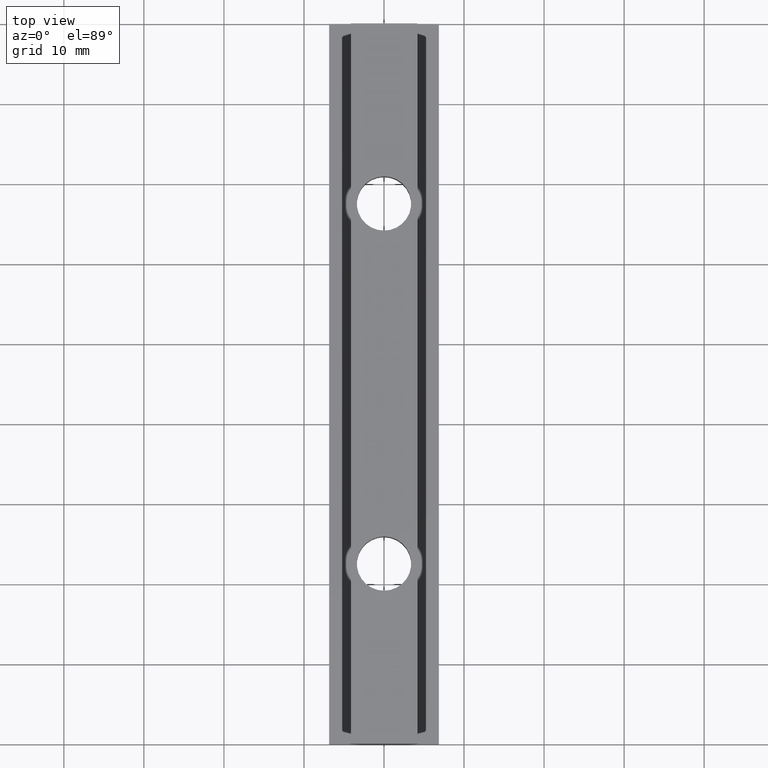
[diagram: clean part render]
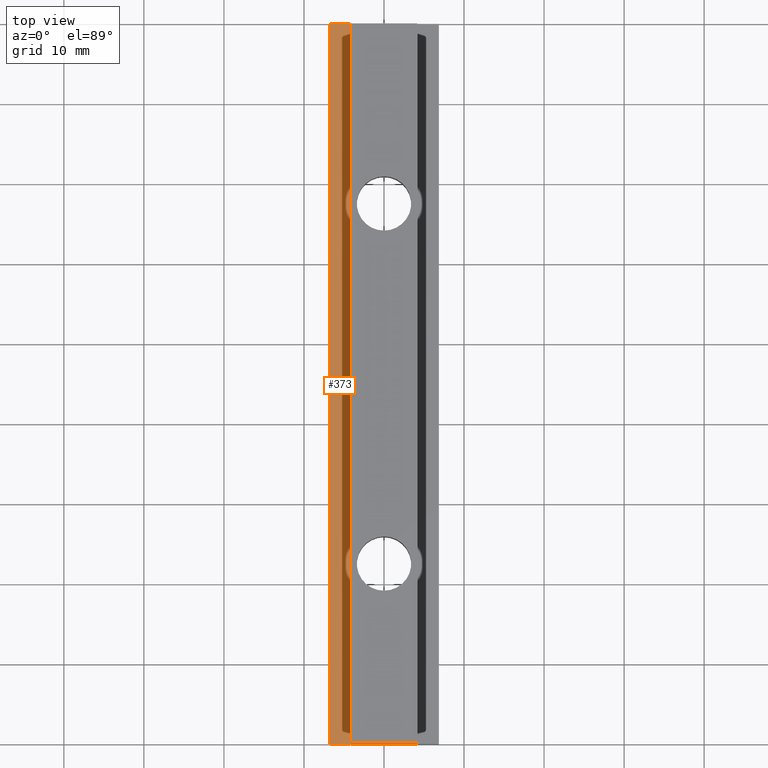
[diagram: same view with one face highlighted and labeled with its STEP entity id]
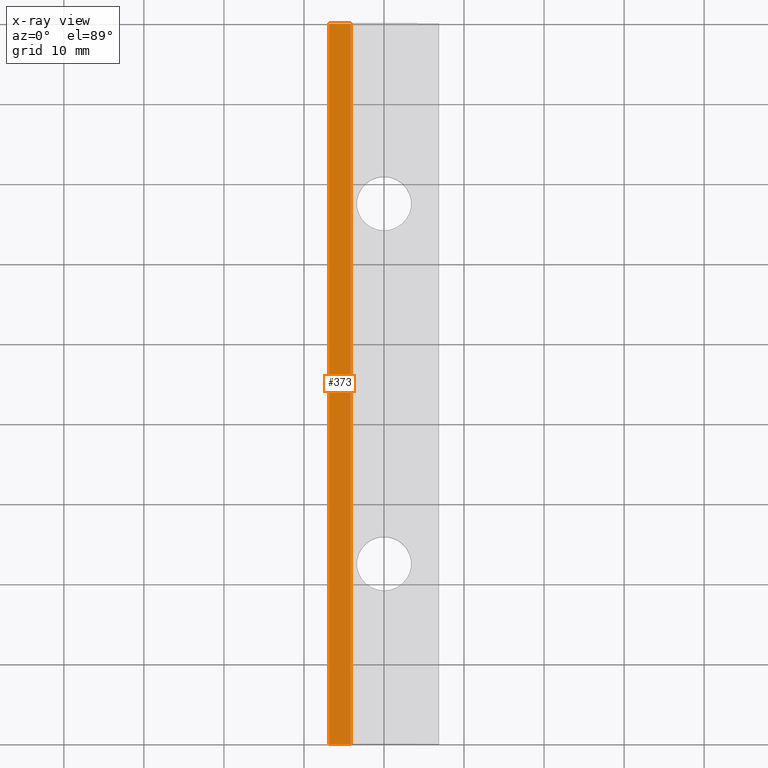
[diagram: x-ray of the same camera — body ghosted, the highlighted face saturated]
A machine part, top view. The second image highlights one B-rep face of the part: STEP entity #373.
The next image is the same camera in x-ray: the body ghosted, the highlighted face saturated — about 0% of this face is hidden behind the body in this view.
In plain terms, the highlighted planar face has unit normal (0, 0, 1).
Its self-contained STEP definition (entity closure, byte-faithful):
#91=CARTESIAN_POINT('',(-6.849999999999994,0.0,4.0));
#92=VERTEX_POINT('',#91);
#101=CARTESIAN_POINT('',(-6.849999999999994,90.0,3.999999999999995));
#102=VERTEX_POINT('',#101);
#103=CARTESIAN_POINT('',(-6.849999999999994,90.0,3.999999999999995));
#104=DIRECTION('',(0.0,-1.0,0.0));
#105=VECTOR('',#104,90.0);
#106=LINE('',#103,#105);
#107=EDGE_CURVE('',#102,#92,#106,.T.);
#326=CARTESIAN_POINT('',(-4.149999999999999,0.0,4.0));
#327=VERTEX_POINT('',#326);
#335=CARTESIAN_POINT('',(-4.149999999999999,90.0,3.999999999999995));
#336=VERTEX_POINT('',#335);
#343=CARTESIAN_POINT('',(-4.149999999999999,90.0,3.999999999999995));
#344=DIRECTION('',(0.0,-1.0,0.0));
#345=VECTOR('',#344,90.0);
#346=LINE('',#343,#345);
#347=EDGE_CURVE('',#336,#327,#346,.T.);
#352=CARTESIAN_POINT('',(-6.984999999999992,94.500000000000000,3.999999999999995));
#353=DIRECTION('',(0.0,0.0,1.0));
#354=DIRECTION('',(0.0,-1.0,0.0));
#355=AXIS2_PLACEMENT_3D('',#352,#353,#354);
#356=PLANE('',#355);
#357=CARTESIAN_POINT('',(-4.149999999999999,0.0,4.0));
#358=DIRECTION('',(-1.0,0.0,0.0));
#359=VECTOR('',#358,2.699999999999996);
#360=LINE('',#357,#359);
#361=EDGE_CURVE('',#327,#92,#360,.T.);
#362=ORIENTED_EDGE('',*,*,#361,.F.);
#363=ORIENTED_EDGE('',*,*,#347,.F.);
#364=CARTESIAN_POINT('',(-4.149999999999999,90.0,3.999999999999995));
#365=DIRECTION('',(-1.0,0.0,0.0));
#366=VECTOR('',#365,2.699999999999996);
#367=LINE('',#364,#366);
#368=EDGE_CURVE('',#336,#102,#367,.T.);
#369=ORIENTED_EDGE('',*,*,#368,.T.);
#370=ORIENTED_EDGE('',*,*,#107,.T.);
#371=EDGE_LOOP('',(#362,#363,#369,#370));
#372=FACE_OUTER_BOUND('',#371,.T.);
#373=ADVANCED_FACE('',(#372),#356,.T.);